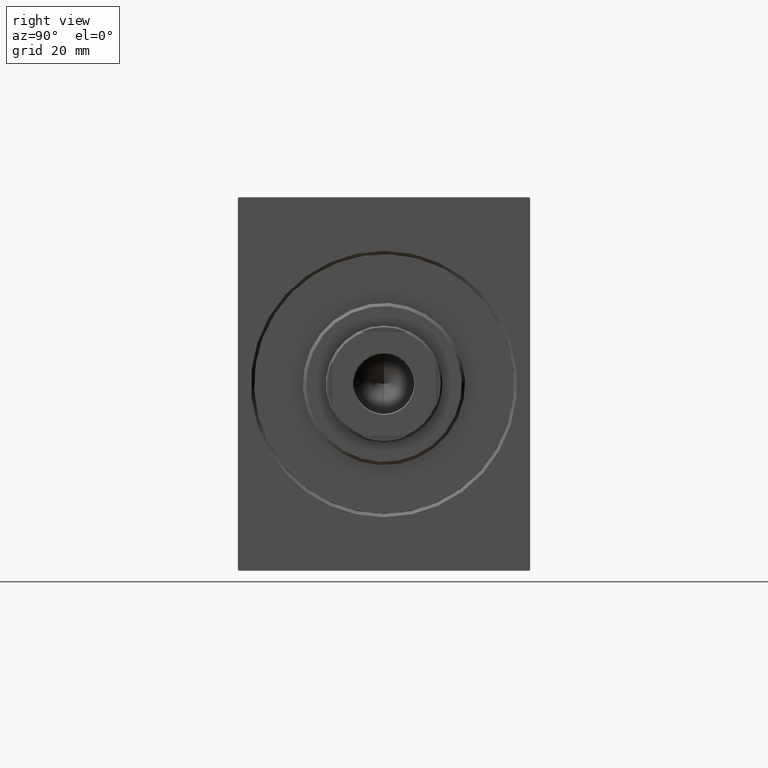
[diagram: clean part render]
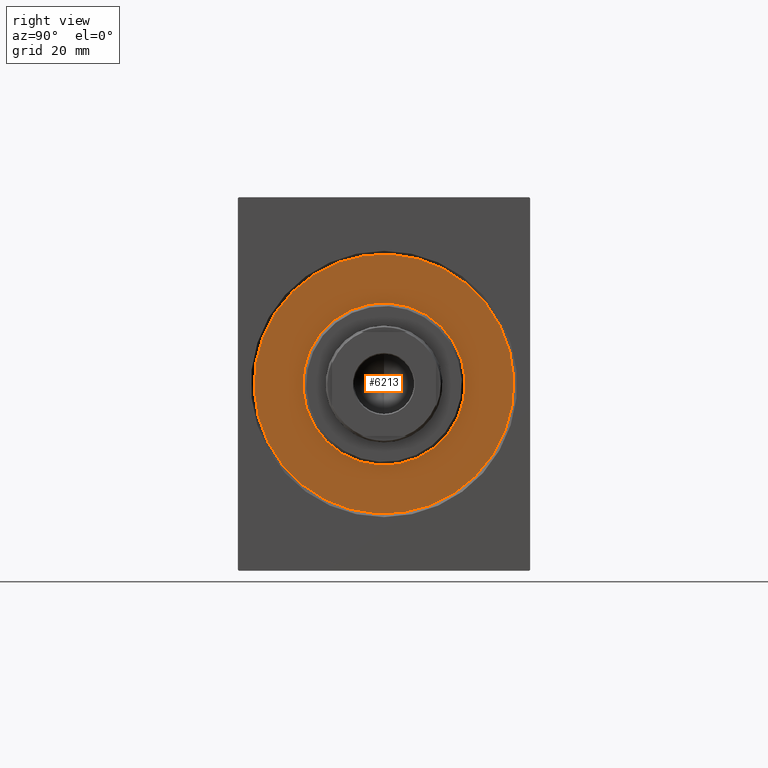
[diagram: same view with one face highlighted and labeled with its STEP entity id]
A machine part, right view. The second image highlights one B-rep face of the part: STEP entity #6213.
In plain terms, the highlighted planar face has unit normal (-1, 0, 0).
Its self-contained STEP definition (entity closure, byte-faithful):
#706 = AXIS2_PLACEMENT_3D ( 'NONE', #9646, #36672, #4099 ) ;
#2145 = DIRECTION ( 'NONE',  ( 0.000000000000000000, 0.000000000000000000, 1.000000000000000000 ) ) ;
#2576 = VERTEX_POINT ( 'NONE', #26776 ) ;
#3018 = EDGE_CURVE ( 'NONE', #2576, #4151, #22593, .T. ) ;
#3241 = CARTESIAN_POINT ( 'NONE',  ( 0.000000000000000000, 0.000000000000000000, 0.000000000000000000 ) ) ;
#4099 = DIRECTION ( 'NONE',  ( 0.000000000000000000, 0.000000000000000000, 1.000000000000000000 ) ) ;
#4151 = VERTEX_POINT ( 'NONE', #37308 ) ;
#4353 = CARTESIAN_POINT ( 'NONE',  ( 0.000000000000000000, 0.000000000000000000, 0.000000000000000000 ) ) ;
#6213 = ADVANCED_FACE ( 'NONE', ( #12977, #26484 ), #40005, .F. ) ;
#6256 = CARTESIAN_POINT ( 'NONE',  ( 0.000000000000000000, 0.000000000000000000, 0.000000000000000000 ) ) ;
#6986 = DIRECTION ( 'NONE',  ( -1.000000000000000000, 0.000000000000000000, 0.000000000000000000 ) ) ;
#8647 = CARTESIAN_POINT ( 'NONE',  ( 0.000000000000000000, 0.000000000000000000, -40.00000000000000000 ) ) ;
#9646 = CARTESIAN_POINT ( 'NONE',  ( 0.000000000000000000, 0.000000000000000000, 0.000000000000000000 ) ) ;
#9796 = DIRECTION ( 'NONE',  ( 1.000000000000000000, -0.000000000000000000, 0.000000000000000000 ) ) ;
#10019 = DIRECTION ( 'NONE',  ( 0.000000000000000000, 0.000000000000000000, -1.000000000000000000 ) ) ;
#12977 = FACE_BOUND ( 'NONE', #22792, .T. ) ;
#13091 = ORIENTED_EDGE ( 'NONE', *, *, #3018, .F. ) ;
#14092 = AXIS2_PLACEMENT_3D ( 'NONE', #4353, #18508, #18288 ) ;
#16019 = EDGE_CURVE ( 'NONE', #42031, #30353, #17888, .T. ) ;
#17888 = CIRCLE ( 'NONE', #40527, 40.00000000000000000 ) ;
#18288 = DIRECTION ( 'NONE',  ( 0.000000000000000000, 0.000000000000000000, -1.000000000000000000 ) ) ;
#18508 = DIRECTION ( 'NONE',  ( 1.000000000000000000, -0.000000000000000000, 0.000000000000000000 ) ) ;
#21157 = CIRCLE ( 'NONE', #41696, 40.00000000000000000 ) ;
#21868 = EDGE_CURVE ( 'NONE', #4151, #2576, #30060, .T. ) ;
#22593 = CIRCLE ( 'NONE', #14092, 25.00000000000000000 ) ;
#22792 = EDGE_LOOP ( 'NONE', ( #41033, #13091 ) ) ;
#26484 = FACE_OUTER_BOUND ( 'NONE', #35869, .T. ) ;
#26776 = CARTESIAN_POINT ( 'NONE',  ( 0.000000000000000000, 3.061616997868383043E-15, -25.00000000000000000 ) ) ;
#30036 = CARTESIAN_POINT ( 'NONE',  ( 0.000000000000000000, 0.000000000000000000, 0.000000000000000000 ) ) ;
#30060 = CIRCLE ( 'NONE', #35722, 25.00000000000000000 ) ;
#30353 = VERTEX_POINT ( 'NONE', #8647 ) ;
#32718 = DIRECTION ( 'NONE',  ( -1.000000000000000000, 0.000000000000000000, 0.000000000000000000 ) ) ;
#33437 = ORIENTED_EDGE ( 'NONE', *, *, #16019, .F. ) ;
#35722 = AXIS2_PLACEMENT_3D ( 'NONE', #6256, #9796, #10019 ) ;
#35869 = EDGE_LOOP ( 'NONE', ( #38268, #33437 ) ) ;
#36672 = DIRECTION ( 'NONE',  ( -1.000000000000000000, 0.000000000000000000, 0.000000000000000000 ) ) ;
#37308 = CARTESIAN_POINT ( 'NONE',  ( 0.000000000000000000, 0.000000000000000000, 25.00000000000000000 ) ) ;
#38268 = ORIENTED_EDGE ( 'NONE', *, *, #38635, .F. ) ;
#38635 = EDGE_CURVE ( 'NONE', #30353, #42031, #21157, .T. ) ;
#39056 = CARTESIAN_POINT ( 'NONE',  ( 0.000000000000000000, 4.898587196589413026E-15, 40.00000000000000000 ) ) ;
#40005 = PLANE ( 'NONE',  #706 ) ;
#40527 = AXIS2_PLACEMENT_3D ( 'NONE', #3241, #6986, #40889 ) ;
#40889 = DIRECTION ( 'NONE',  ( 0.000000000000000000, 0.000000000000000000, 1.000000000000000000 ) ) ;
#41033 = ORIENTED_EDGE ( 'NONE', *, *, #21868, .F. ) ;
#41696 = AXIS2_PLACEMENT_3D ( 'NONE', #30036, #32718, #2145 ) ;
#42031 = VERTEX_POINT ( 'NONE', #39056 ) ;